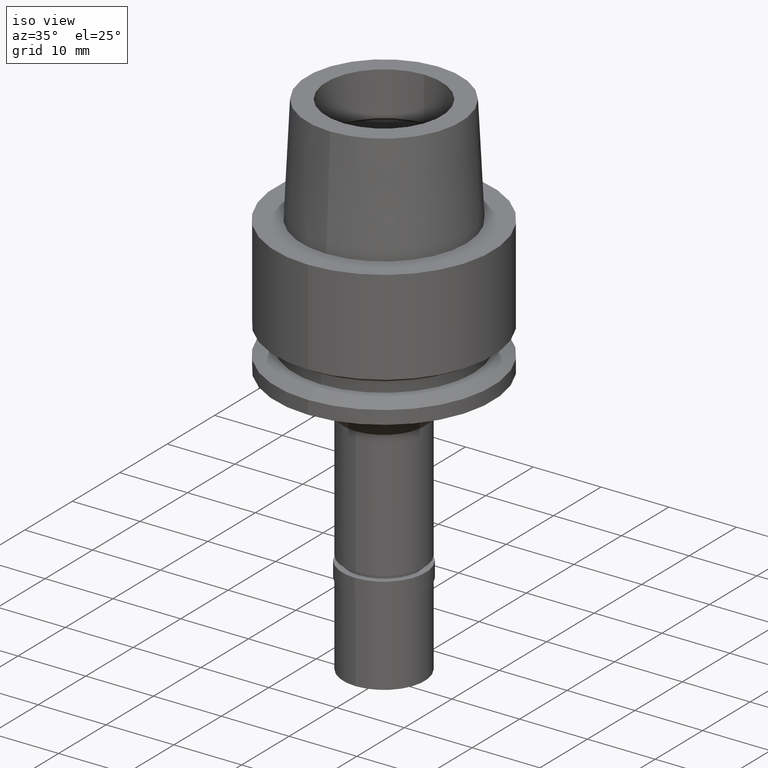
[diagram: clean part render]
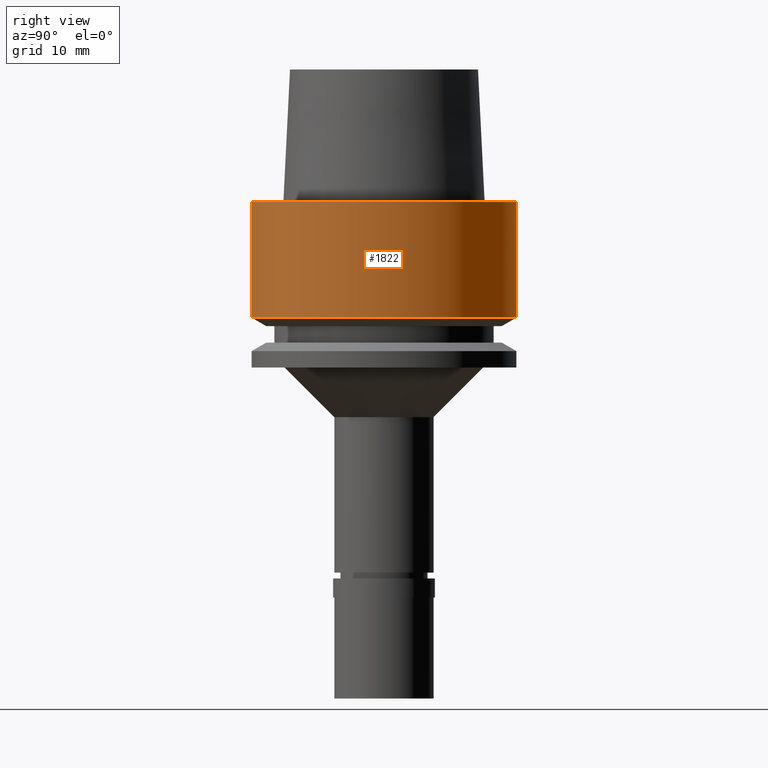
[diagram: tour spotlight — one face highlighted and labeled with its STEP entity id]
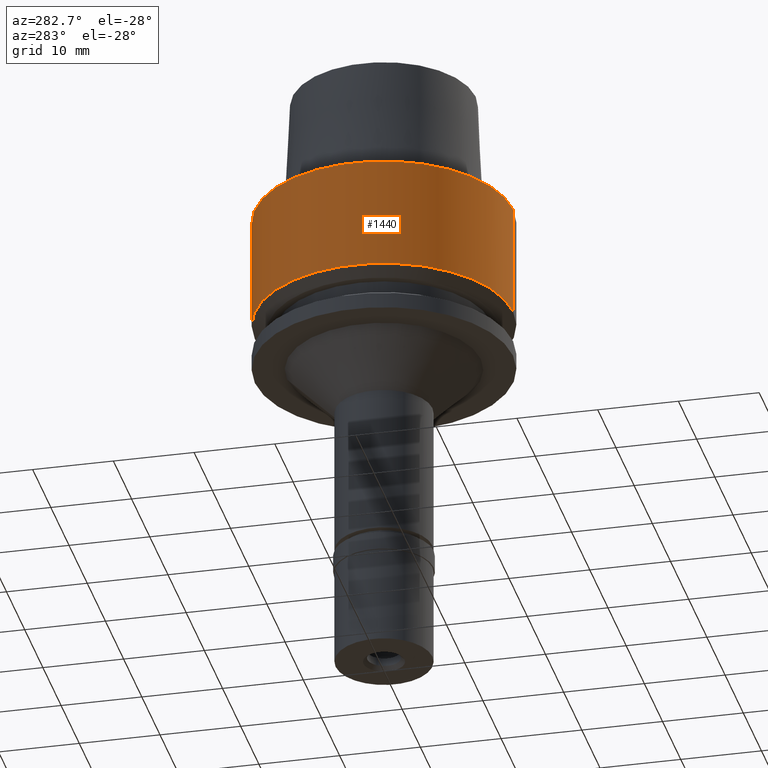
[diagram: tour spotlight — one face highlighted and labeled with its STEP entity id]
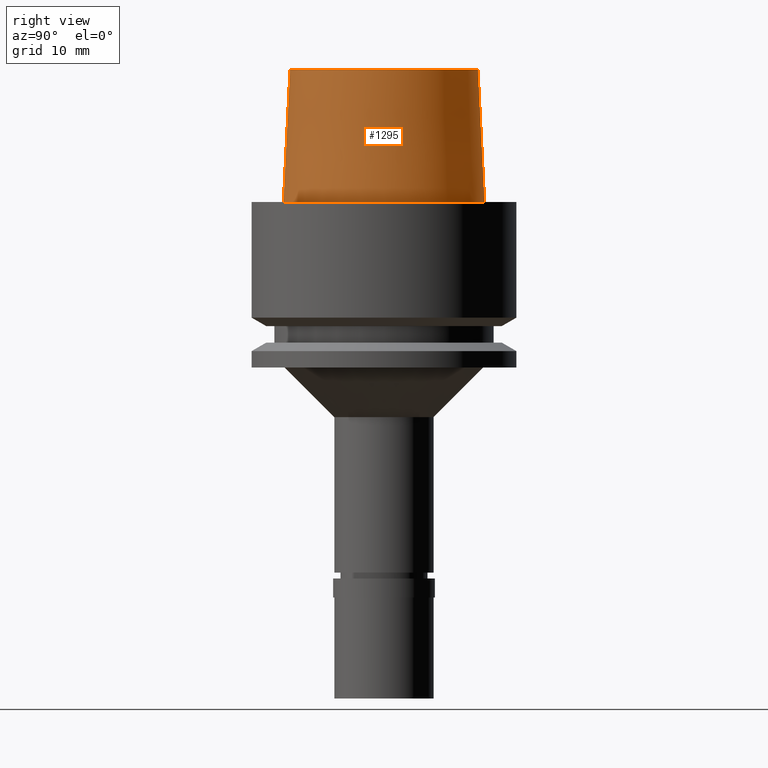
[diagram: tour spotlight — one face highlighted and labeled with its STEP entity id]
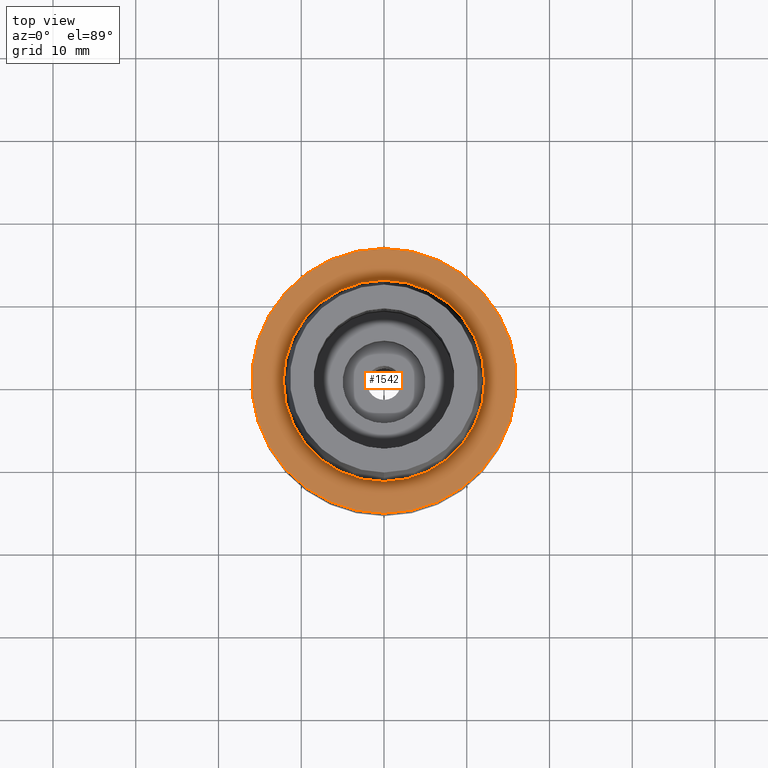
[diagram: tour spotlight — one face highlighted and labeled with its STEP entity id]
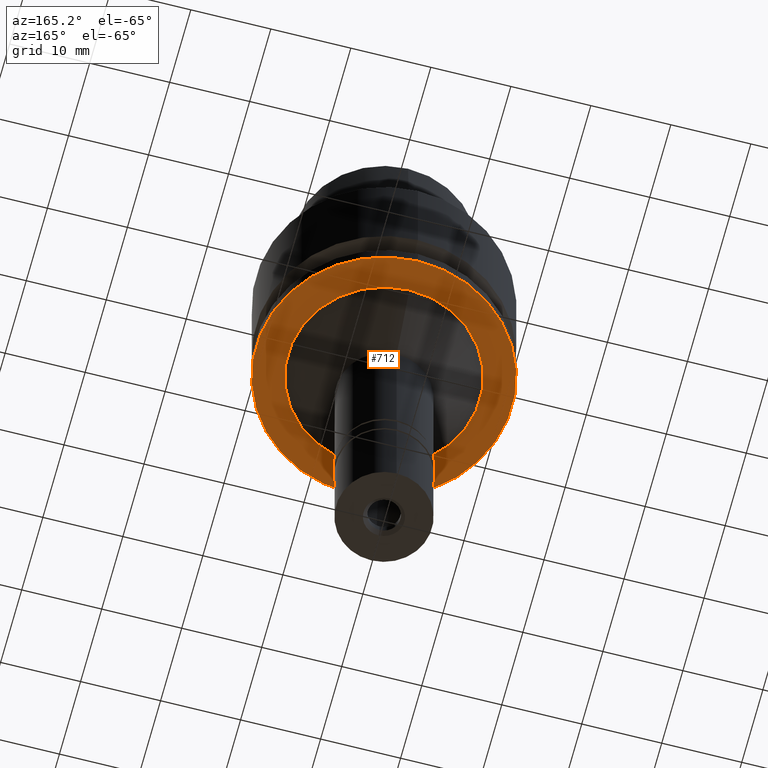
[diagram: tour spotlight — one face highlighted and labeled with its STEP entity id]
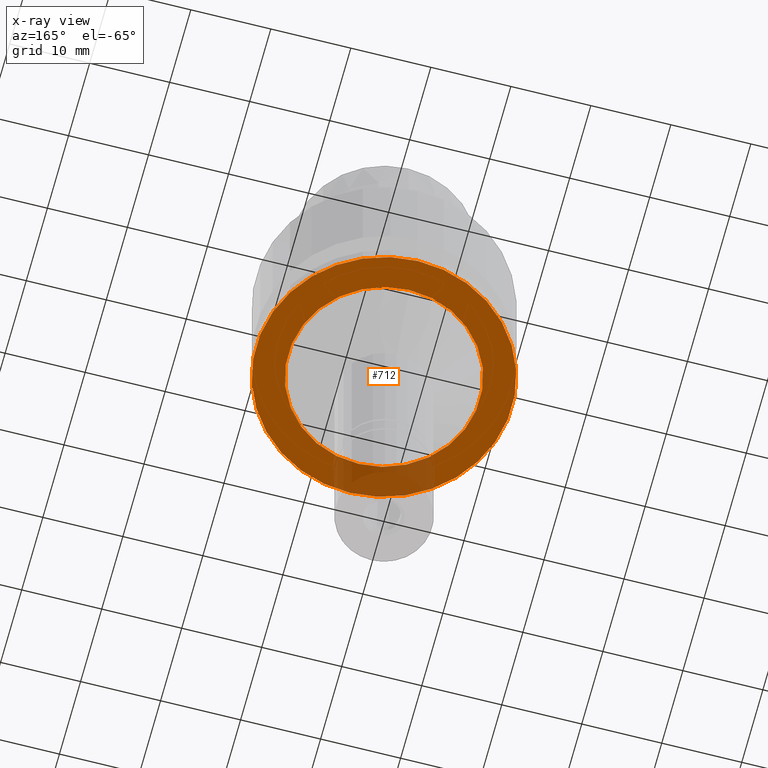
[diagram: x-ray of the same camera — body ghosted, this tour face saturated]
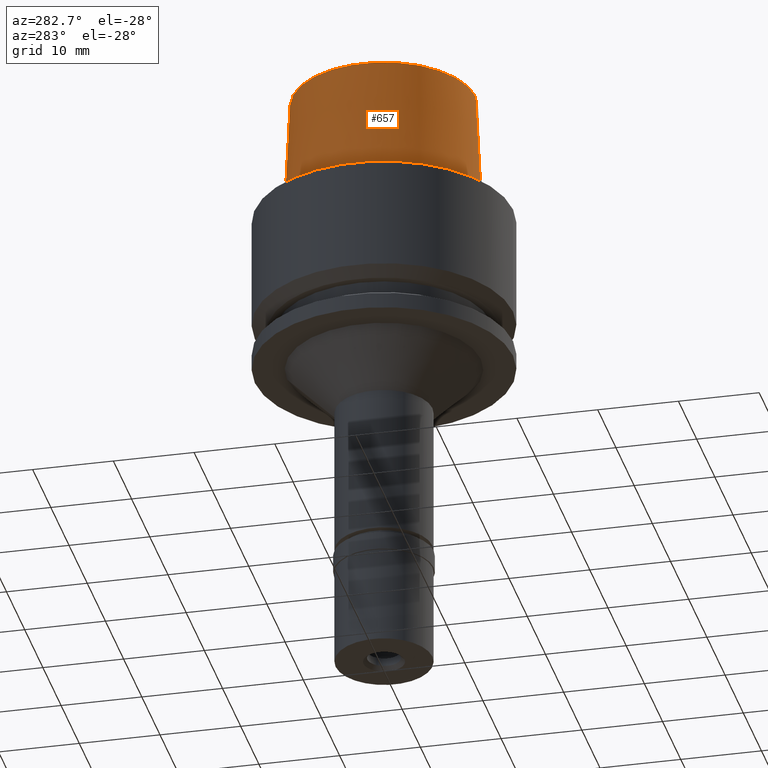
[diagram: tour spotlight — one face highlighted and labeled with its STEP entity id]
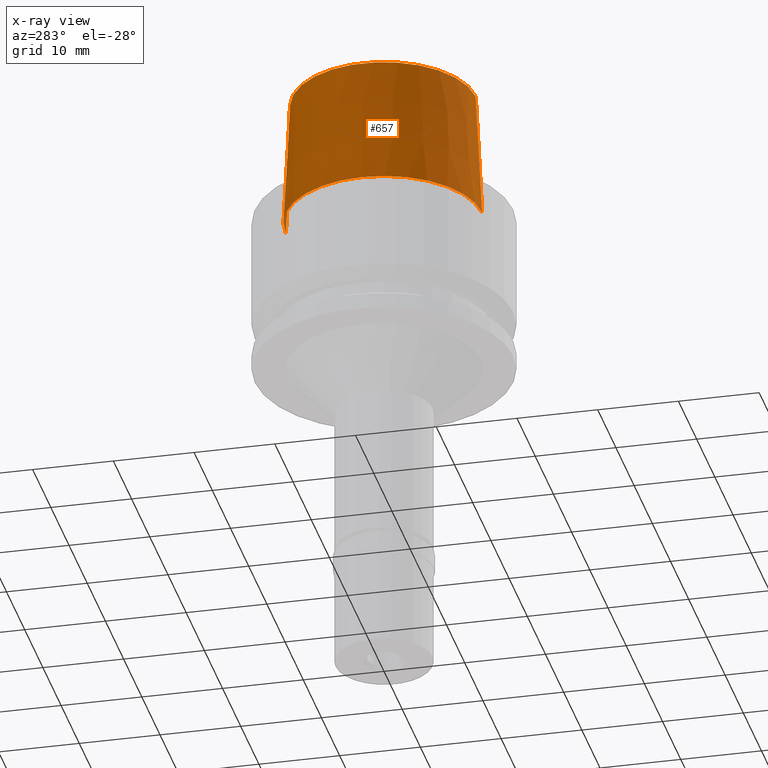
[diagram: x-ray of the same camera — body ghosted, this tour face saturated]
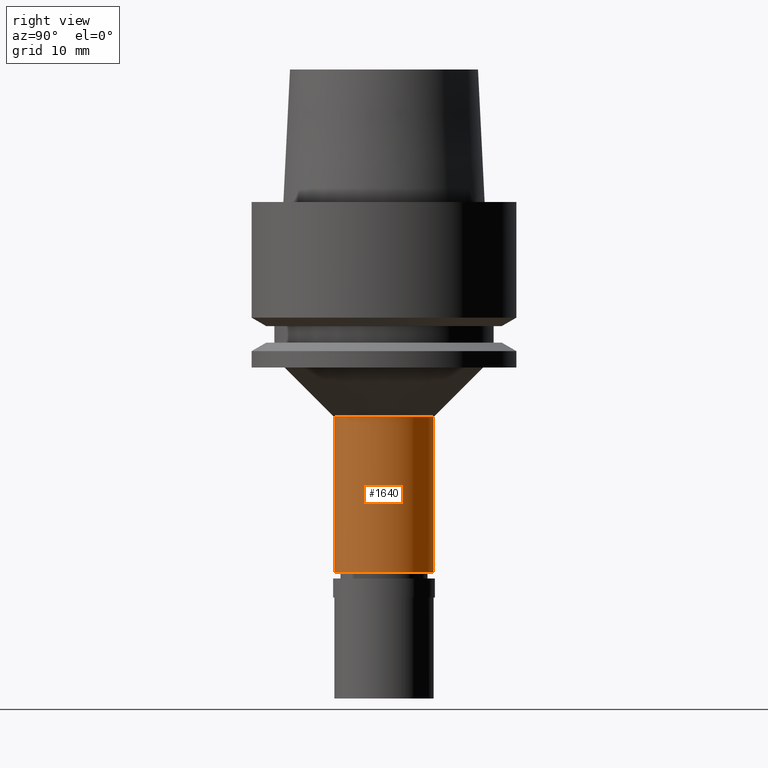
[diagram: tour spotlight — one face highlighted and labeled with its STEP entity id]
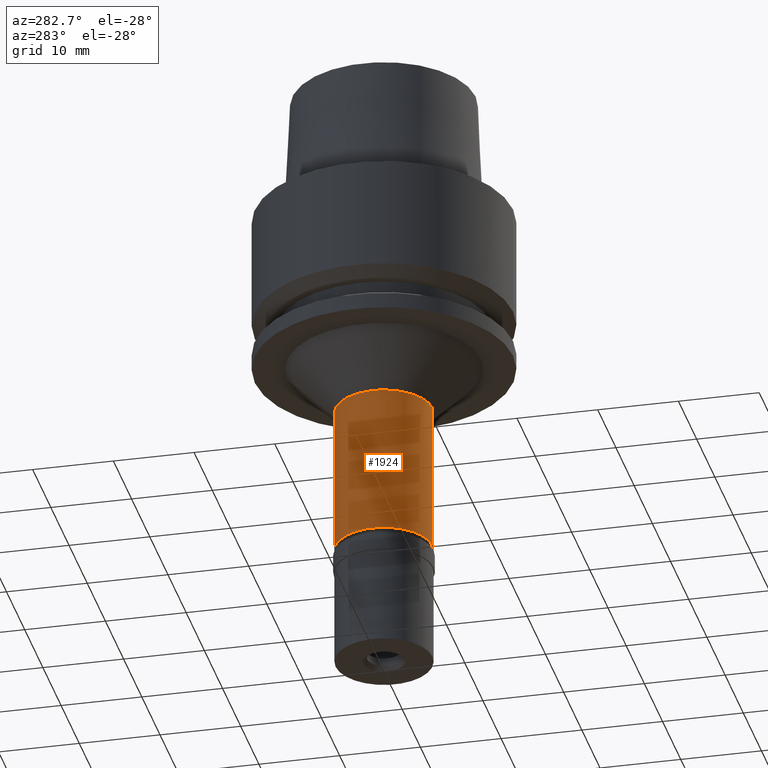
[diagram: tour spotlight — one face highlighted and labeled with its STEP entity id]
A machine part: a face-by-face anatomy tour. The part has 74 B-rep faces; the first image is the clean iso view, then the 8 largest visible faces are spotlighted one at a time (largest first), each with its STEP entity span.

Face 1 — right view, entity #1822. In plain terms, the highlighted cylindrical surface (partial cylindrical patch) has radius 16 mm, axis along (0, 0, 1).
Definition (entity closure, byte-faithful):
#21 = CARTESIAN_POINT ( 'NONE',  ( 0.0000000000000000000, 0.0000000000000000000, -59.60000000000000142 ) ) ;
#83 = EDGE_CURVE ( 'NONE', #2484, #1116, #2557, .T. ) ;
#120 = CARTESIAN_POINT ( 'NONE',  ( 0.0000000000000000000, -16.00000000000000000, -13.97927405783999966 ) ) ;
#125 = CARTESIAN_POINT ( 'NONE',  ( 0.0000000000000000000, -16.00000000000000000, -7.815970093360999808E-14 ) ) ;
#161 = VECTOR ( 'NONE', #2613, 1000.000000000000000 ) ;
#239 = DIRECTION ( 'NONE',  ( 0.0000000000000000000, 1.000000000000000000, 0.0000000000000000000 ) ) ;
#263 = FACE_OUTER_BOUND ( 'NONE', #1211, .T. ) ;
#333 = EDGE_CURVE ( 'NONE', #1255, #1116, #977, .T. ) ;
#349 = CARTESIAN_POINT ( 'NONE',  ( 0.0000000000000000000, 16.00000000000000000, -5.210646728906999149E-14 ) ) ;
#358 = EDGE_CURVE ( 'NONE', #1067, #2484, #966, .T. ) ;
#380 = ORIENTED_EDGE ( 'NONE', *, *, #358, .T. ) ;
#576 = DIRECTION ( 'NONE',  ( 0.0000000000000000000, -1.000000000000000000, 0.0000000000000000000 ) ) ;
#590 = CARTESIAN_POINT ( 'NONE',  ( 0.0000000000000000000, 0.0000000000000000000, -13.97927405783999966 ) ) ;
#599 = AXIS2_PLACEMENT_3D ( 'NONE', #590, #1838, #576 ) ;
#756 = DIRECTION ( 'NONE',  ( 0.0000000000000000000, 6.772870976582999535E-14, -1.000000000000000000 ) ) ;
#775 = CARTESIAN_POINT ( 'NONE',  ( 0.0000000000000000000, 0.0000000000000000000, -7.815970093360999808E-14 ) ) ;
#930 = CARTESIAN_POINT ( 'NONE',  ( 0.0000000000000000000, 16.00000000000000000, -13.97927405783999966 ) ) ;
#966 = LINE ( 'NONE', #1164, #2518 ) ;
#977 = LINE ( 'NONE', #349, #161 ) ;
#1013 = DIRECTION ( 'NONE',  ( 0.0000000000000000000, 1.000000000000000000, 0.0000000000000000000 ) ) ;
#1067 = VERTEX_POINT ( 'NONE', #125 ) ;
#1116 = VERTEX_POINT ( 'NONE', #930 ) ;
#1164 = CARTESIAN_POINT ( 'NONE',  ( 0.0000000000000000000, -16.00000000000000000, -5.210646728906999149E-14 ) ) ;
#1211 = EDGE_LOOP ( 'NONE', ( #1507, #380, #2096, #1720 ) ) ;
#1255 = VERTEX_POINT ( 'NONE', #1404 ) ;
#1404 = CARTESIAN_POINT ( 'NONE',  ( 0.0000000000000000000, 16.00000000000000000, -7.815970093360999808E-14 ) ) ;
#1507 = ORIENTED_EDGE ( 'NONE', *, *, #1943, .T. ) ;
#1598 = CIRCLE ( 'NONE', #2328, 16.00000000000000000 ) ;
#1720 = ORIENTED_EDGE ( 'NONE', *, *, #333, .F. ) ;
#1822 = ADVANCED_FACE ( 'NONE', ( #263 ), #1901, .T. ) ;
#1838 = DIRECTION ( 'NONE',  ( 0.0000000000000000000, 0.0000000000000000000, 1.000000000000000000 ) ) ;
#1901 = CYLINDRICAL_SURFACE ( 'NONE', #2280, 16.00000000000000000 ) ;
#1943 = EDGE_CURVE ( 'NONE', #1255, #1067, #1598, .T. ) ;
#2096 = ORIENTED_EDGE ( 'NONE', *, *, #83, .T. ) ;
#2280 = AXIS2_PLACEMENT_3D ( 'NONE', #21, #2506, #239 ) ;
#2328 = AXIS2_PLACEMENT_3D ( 'NONE', #775, #2488, #1013 ) ;
#2484 = VERTEX_POINT ( 'NONE', #120 ) ;
#2488 = DIRECTION ( 'NONE',  ( 0.0000000000000000000, 0.0000000000000000000, -1.000000000000000000 ) ) ;
#2506 = DIRECTION ( 'NONE',  ( 0.0000000000000000000, 0.0000000000000000000, 1.000000000000000000 ) ) ;
#2518 = VECTOR ( 'NONE', #756, 1000.000000000000000 ) ;
#2557 = CIRCLE ( 'NONE', #599, 16.00000000000000000 ) ;
#2613 = DIRECTION ( 'NONE',  ( 0.0000000000000000000, -6.772870976582999535E-14, -1.000000000000000000 ) ) ;

Face 2 — auxiliary view, entity #1440. In plain terms, the highlighted cylindrical surface (partial cylindrical patch) has radius 16 mm, axis along (0, 0, 1).
Definition (entity closure, byte-faithful):
#120 = CARTESIAN_POINT ( 'NONE',  ( 0.0000000000000000000, -16.00000000000000000, -13.97927405783999966 ) ) ;
#125 = CARTESIAN_POINT ( 'NONE',  ( 0.0000000000000000000, -16.00000000000000000, -7.815970093360999808E-14 ) ) ;
#161 = VECTOR ( 'NONE', #2613, 1000.000000000000000 ) ;
#314 = EDGE_CURVE ( 'NONE', #1116, #2484, #1828, .T. ) ;
#333 = EDGE_CURVE ( 'NONE', #1255, #1116, #977, .T. ) ;
#349 = CARTESIAN_POINT ( 'NONE',  ( 0.0000000000000000000, 16.00000000000000000, -5.210646728906999149E-14 ) ) ;
#358 = EDGE_CURVE ( 'NONE', #1067, #2484, #966, .T. ) ;
#420 = CYLINDRICAL_SURFACE ( 'NONE', #665, 16.00000000000000000 ) ;
#578 = DIRECTION ( 'NONE',  ( 0.0000000000000000000, 1.000000000000000000, 0.0000000000000000000 ) ) ;
#665 = AXIS2_PLACEMENT_3D ( 'NONE', #1210, #1019, #578 ) ;
#756 = DIRECTION ( 'NONE',  ( 0.0000000000000000000, 6.772870976582999535E-14, -1.000000000000000000 ) ) ;
#930 = CARTESIAN_POINT ( 'NONE',  ( 0.0000000000000000000, 16.00000000000000000, -13.97927405783999966 ) ) ;
#966 = LINE ( 'NONE', #1164, #2518 ) ;
#977 = LINE ( 'NONE', #349, #161 ) ;
#989 = DIRECTION ( 'NONE',  ( 0.0000000000000000000, 0.0000000000000000000, 1.000000000000000000 ) ) ;
#998 = CARTESIAN_POINT ( 'NONE',  ( 0.0000000000000000000, 0.0000000000000000000, -7.815970093360999808E-14 ) ) ;
#1019 = DIRECTION ( 'NONE',  ( 0.0000000000000000000, 0.0000000000000000000, 1.000000000000000000 ) ) ;
#1036 = FACE_OUTER_BOUND ( 'NONE', #1156, .T. ) ;
#1067 = VERTEX_POINT ( 'NONE', #125 ) ;
#1116 = VERTEX_POINT ( 'NONE', #930 ) ;
#1129 = ORIENTED_EDGE ( 'NONE', *, *, #333, .T. ) ;
#1156 = EDGE_LOOP ( 'NONE', ( #1645, #1944, #1455, #1129 ) ) ;
#1162 = AXIS2_PLACEMENT_3D ( 'NONE', #1814, #989, #1830 ) ;
#1164 = CARTESIAN_POINT ( 'NONE',  ( 0.0000000000000000000, -16.00000000000000000, -5.210646728906999149E-14 ) ) ;
#1194 = AXIS2_PLACEMENT_3D ( 'NONE', #998, #1878, #1480 ) ;
#1210 = CARTESIAN_POINT ( 'NONE',  ( 0.0000000000000000000, 0.0000000000000000000, -59.60000000000000142 ) ) ;
#1255 = VERTEX_POINT ( 'NONE', #1404 ) ;
#1404 = CARTESIAN_POINT ( 'NONE',  ( 0.0000000000000000000, 16.00000000000000000, -7.815970093360999808E-14 ) ) ;
#1440 = ADVANCED_FACE ( 'NONE', ( #1036 ), #420, .T. ) ;
#1455 = ORIENTED_EDGE ( 'NONE', *, *, #2522, .T. ) ;
#1480 = DIRECTION ( 'NONE',  ( 0.0000000000000000000, -1.000000000000000000, 0.0000000000000000000 ) ) ;
#1554 = CIRCLE ( 'NONE', #1194, 16.00000000000000000 ) ;
#1645 = ORIENTED_EDGE ( 'NONE', *, *, #314, .T. ) ;
#1814 = CARTESIAN_POINT ( 'NONE',  ( 0.0000000000000000000, 0.0000000000000000000, -13.97927405783999966 ) ) ;
#1828 = CIRCLE ( 'NONE', #1162, 16.00000000000000000 ) ;
#1830 = DIRECTION ( 'NONE',  ( 0.0000000000000000000, 1.000000000000000000, 0.0000000000000000000 ) ) ;
#1878 = DIRECTION ( 'NONE',  ( 0.0000000000000000000, 0.0000000000000000000, -1.000000000000000000 ) ) ;
#1944 = ORIENTED_EDGE ( 'NONE', *, *, #358, .F. ) ;
#2484 = VERTEX_POINT ( 'NONE', #120 ) ;
#2518 = VECTOR ( 'NONE', #756, 1000.000000000000000 ) ;
#2522 = EDGE_CURVE ( 'NONE', #1067, #1255, #1554, .T. ) ;
#2613 = DIRECTION ( 'NONE',  ( 0.0000000000000000000, -6.772870976582999535E-14, -1.000000000000000000 ) ) ;

Face 3 — right view, entity #1295. In plain terms, the highlighted conical surface has half-angle 2.862 deg.
Definition (entity closure, byte-faithful):
#122 = LINE ( 'NONE', #738, #997 ) ;
#123 = AXIS2_PLACEMENT_3D ( 'NONE', #764, #2030, #947 ) ;
#166 = VERTEX_POINT ( 'NONE', #2543 ) ;
#212 = DIRECTION ( 'NONE',  ( 0.0000000000000000000, 0.0000000000000000000, 1.000000000000000000 ) ) ;
#261 = CARTESIAN_POINT ( 'NONE',  ( 0.0000000000000000000, 0.0000000000000000000, 16.00000000000000000 ) ) ;
#422 = CIRCLE ( 'NONE', #1831, 12.15999970738999991 ) ;
#479 = EDGE_CURVE ( 'NONE', #643, #2351, #1572, .T. ) ;
#570 = EDGE_CURVE ( 'NONE', #2351, #166, #422, .T. ) ;
#643 = VERTEX_POINT ( 'NONE', #2298 ) ;
#738 = CARTESIAN_POINT ( 'NONE',  ( 0.0000000000000000000, 11.36000117044000035, 16.00000000000000000 ) ) ;
#764 = CARTESIAN_POINT ( 'NONE',  ( 0.0000000000000000000, 0.0000000000000000000, 8.000000000000000000 ) ) ;
#782 = DIRECTION ( 'NONE',  ( 0.0000000000000000000, 0.04993752584492938684, -0.9987523434327887362 ) ) ;
#831 = EDGE_CURVE ( 'NONE', #1829, #643, #2216, .T. ) ;
#854 = DIRECTION ( 'NONE',  ( 0.0000000000000000000, 0.0000000000000000000, -1.000000000000000000 ) ) ;
#947 = DIRECTION ( 'NONE',  ( 0.0000000000000000000, -1.000000000000000000, 0.0000000000000000000 ) ) ;
#997 = VECTOR ( 'NONE', #782, 999.9999999999998863 ) ;
#1000 = ORIENTED_EDGE ( 'NONE', *, *, #479, .T. ) ;
#1063 = EDGE_LOOP ( 'NONE', ( #1201, #1000, #1978, #1826 ) ) ;
#1074 = CARTESIAN_POINT ( 'NONE',  ( 0.0000000000000000000, 11.36000117044999946, 16.00000000000000000 ) ) ;
#1080 = AXIS2_PLACEMENT_3D ( 'NONE', #261, #854, #1938 ) ;
#1199 = EDGE_CURVE ( 'NONE', #1829, #166, #122, .T. ) ;
#1201 = ORIENTED_EDGE ( 'NONE', *, *, #831, .T. ) ;
#1295 = ADVANCED_FACE ( 'NONE', ( #2632 ), #2301, .T. ) ;
#1378 = CARTESIAN_POINT ( 'NONE',  ( 0.0000000000000000000, -12.15999970738999991, 2.078337502097999714E-13 ) ) ;
#1398 = DIRECTION ( 'NONE',  ( 0.0000000000000000000, -0.04993752584492938684, -0.9987523434327887362 ) ) ;
#1572 = LINE ( 'NONE', #1614, #1873 ) ;
#1614 = CARTESIAN_POINT ( 'NONE',  ( 0.0000000000000000000, -11.36000117044000035, 16.00000000000000000 ) ) ;
#1826 = ORIENTED_EDGE ( 'NONE', *, *, #1199, .F. ) ;
#1829 = VERTEX_POINT ( 'NONE', #1074 ) ;
#1831 = AXIS2_PLACEMENT_3D ( 'NONE', #2086, #212, #1833 ) ;
#1833 = DIRECTION ( 'NONE',  ( 0.0000000000000000000, -1.000000000000000000, 0.0000000000000000000 ) ) ;
#1873 = VECTOR ( 'NONE', #1398, 999.9999999999998863 ) ;
#1938 = DIRECTION ( 'NONE',  ( 0.0000000000000000000, 1.000000000000000000, 0.0000000000000000000 ) ) ;
#1978 = ORIENTED_EDGE ( 'NONE', *, *, #570, .T. ) ;
#2030 = DIRECTION ( 'NONE',  ( 0.0000000000000000000, 0.0000000000000000000, -1.000000000000000000 ) ) ;
#2086 = CARTESIAN_POINT ( 'NONE',  ( 0.0000000000000000000, 0.0000000000000000000, 3.126388037344000570E-13 ) ) ;
#2216 = CIRCLE ( 'NONE', #1080, 11.36000117044999946 ) ;
#2298 = CARTESIAN_POINT ( 'NONE',  ( 0.0000000000000000000, -11.36000117044999946, 16.00000000000000000 ) ) ;
#2301 = CONICAL_SURFACE ( 'NONE', #123, 11.76000043892000058, 0.04995830450907576964 ) ;
#2351 = VERTEX_POINT ( 'NONE', #1378 ) ;
#2543 = CARTESIAN_POINT ( 'NONE',  ( 0.0000000000000000000, 12.15999970738999991, 2.078337502097999714E-13 ) ) ;
#2632 = FACE_OUTER_BOUND ( 'NONE', #1063, .T. ) ;

Face 4 — top view, entity #1542. In plain terms, the highlighted planar face has unit normal (0, 0, 1).
Definition (entity closure, byte-faithful):
#88 = EDGE_LOOP ( 'NONE', ( #1442, #451 ) ) ;
#125 = CARTESIAN_POINT ( 'NONE',  ( 0.0000000000000000000, -16.00000000000000000, -7.815970093360999808E-14 ) ) ;
#159 = DIRECTION ( 'NONE',  ( 1.000000000000000000, 0.0000000000000000000, 0.0000000000000000000 ) ) ;
#166 = VERTEX_POINT ( 'NONE', #2543 ) ;
#212 = DIRECTION ( 'NONE',  ( 0.0000000000000000000, 0.0000000000000000000, 1.000000000000000000 ) ) ;
#394 = CARTESIAN_POINT ( 'NONE',  ( 0.0000000000000000000, 0.0000000000000000000, 3.126388037344000570E-13 ) ) ;
#422 = CIRCLE ( 'NONE', #1831, 12.15999970738999991 ) ;
#451 = ORIENTED_EDGE ( 'NONE', *, *, #2522, .F. ) ;
#487 = ORIENTED_EDGE ( 'NONE', *, *, #570, .F. ) ;
#570 = EDGE_CURVE ( 'NONE', #2351, #166, #422, .T. ) ;
#710 = AXIS2_PLACEMENT_3D ( 'NONE', #1190, #2475, #159 ) ;
#775 = CARTESIAN_POINT ( 'NONE',  ( 0.0000000000000000000, 0.0000000000000000000, -7.815970093360999808E-14 ) ) ;
#998 = CARTESIAN_POINT ( 'NONE',  ( 0.0000000000000000000, 0.0000000000000000000, -7.815970093360999808E-14 ) ) ;
#1013 = DIRECTION ( 'NONE',  ( 0.0000000000000000000, 1.000000000000000000, 0.0000000000000000000 ) ) ;
#1067 = VERTEX_POINT ( 'NONE', #125 ) ;
#1190 = CARTESIAN_POINT ( 'NONE',  ( 0.0000000000000000000, 0.0000000000000000000, 0.0000000000000000000 ) ) ;
#1194 = AXIS2_PLACEMENT_3D ( 'NONE', #998, #1878, #1480 ) ;
#1224 = DIRECTION ( 'NONE',  ( 0.0000000000000000000, 1.000000000000000000, 0.0000000000000000000 ) ) ;
#1255 = VERTEX_POINT ( 'NONE', #1404 ) ;
#1378 = CARTESIAN_POINT ( 'NONE',  ( 0.0000000000000000000, -12.15999970738999991, 2.078337502097999714E-13 ) ) ;
#1404 = CARTESIAN_POINT ( 'NONE',  ( 0.0000000000000000000, 16.00000000000000000, -7.815970093360999808E-14 ) ) ;
#1442 = ORIENTED_EDGE ( 'NONE', *, *, #1943, .F. ) ;
#1480 = DIRECTION ( 'NONE',  ( 0.0000000000000000000, -1.000000000000000000, 0.0000000000000000000 ) ) ;
#1542 = ADVANCED_FACE ( 'NONE', ( #1859, #2492 ), #2677, .T. ) ;
#1554 = CIRCLE ( 'NONE', #1194, 16.00000000000000000 ) ;
#1598 = CIRCLE ( 'NONE', #2328, 16.00000000000000000 ) ;
#1786 = EDGE_LOOP ( 'NONE', ( #2432, #487 ) ) ;
#1831 = AXIS2_PLACEMENT_3D ( 'NONE', #2086, #212, #1833 ) ;
#1833 = DIRECTION ( 'NONE',  ( 0.0000000000000000000, -1.000000000000000000, 0.0000000000000000000 ) ) ;
#1859 = FACE_OUTER_BOUND ( 'NONE', #88, .T. ) ;
#1878 = DIRECTION ( 'NONE',  ( 0.0000000000000000000, 0.0000000000000000000, -1.000000000000000000 ) ) ;
#1904 = CIRCLE ( 'NONE', #2546, 12.15999970738999991 ) ;
#1943 = EDGE_CURVE ( 'NONE', #1255, #1067, #1598, .T. ) ;
#2049 = DIRECTION ( 'NONE',  ( 0.0000000000000000000, 0.0000000000000000000, 1.000000000000000000 ) ) ;
#2086 = CARTESIAN_POINT ( 'NONE',  ( 0.0000000000000000000, 0.0000000000000000000, 3.126388037344000570E-13 ) ) ;
#2088 = EDGE_CURVE ( 'NONE', #166, #2351, #1904, .T. ) ;
#2328 = AXIS2_PLACEMENT_3D ( 'NONE', #775, #2488, #1013 ) ;
#2351 = VERTEX_POINT ( 'NONE', #1378 ) ;
#2432 = ORIENTED_EDGE ( 'NONE', *, *, #2088, .F. ) ;
#2475 = DIRECTION ( 'NONE',  ( 0.0000000000000000000, 0.0000000000000000000, 1.000000000000000000 ) ) ;
#2488 = DIRECTION ( 'NONE',  ( 0.0000000000000000000, 0.0000000000000000000, -1.000000000000000000 ) ) ;
#2492 = FACE_BOUND ( 'NONE', #1786, .T. ) ;
#2522 = EDGE_CURVE ( 'NONE', #1067, #1255, #1554, .T. ) ;
#2543 = CARTESIAN_POINT ( 'NONE',  ( 0.0000000000000000000, 12.15999970738999991, 2.078337502097999714E-13 ) ) ;
#2546 = AXIS2_PLACEMENT_3D ( 'NONE', #394, #2049, #1224 ) ;
#2677 = PLANE ( 'NONE',  #710 ) ;

Face 5 — auxiliary view, entity #712. An x-ray twin of the same camera follows (body ghosted, this face saturated) — the face is partly hidden behind the body. In plain terms, the highlighted planar face has unit normal (0, 0, 1).
Definition (entity closure, byte-faithful):
#15 = CARTESIAN_POINT ( 'NONE',  ( 0.0000000000000000000, 0.0000000000000000000, -20.00000000000000000 ) ) ;
#47 = PLANE ( 'NONE',  #2299 ) ;
#158 = EDGE_CURVE ( 'NONE', #792, #923, #1782, .T. ) ;
#235 = ORIENTED_EDGE ( 'NONE', *, *, #1689, .F. ) ;
#237 = FACE_BOUND ( 'NONE', #2352, .T. ) ;
#417 = CARTESIAN_POINT ( 'NONE',  ( 0.0000000000000000000, 0.0000000000000000000, -20.00000000000000000 ) ) ;
#450 = FACE_OUTER_BOUND ( 'NONE', #1041, .T. ) ;
#470 = CIRCLE ( 'NONE', #1921, 12.00000000000000000 ) ;
#491 = DIRECTION ( 'NONE',  ( 0.0000000000000000000, 1.000000000000000000, 0.0000000000000000000 ) ) ;
#712 = ADVANCED_FACE ( 'NONE', ( #450, #237 ), #47, .F. ) ;
#734 = ORIENTED_EDGE ( 'NONE', *, *, #746, .F. ) ;
#746 = EDGE_CURVE ( 'NONE', #2687, #1810, #2428, .T. ) ;
#792 = VERTEX_POINT ( 'NONE', #2346 ) ;
#880 = DIRECTION ( 'NONE',  ( 0.0000000000000000000, 0.0000000000000000000, 1.000000000000000000 ) ) ;
#923 = VERTEX_POINT ( 'NONE', #1973 ) ;
#1016 = DIRECTION ( 'NONE',  ( 0.0000000000000000000, -1.000000000000000000, 0.0000000000000000000 ) ) ;
#1041 = EDGE_LOOP ( 'NONE', ( #1213, #235 ) ) ;
#1071 = CARTESIAN_POINT ( 'NONE',  ( 0.0000000000000000000, 0.0000000000000000000, -20.00000000000000000 ) ) ;
#1075 = DIRECTION ( 'NONE',  ( 0.0000000000000000000, 0.0000000000000000000, 1.000000000000000000 ) ) ;
#1078 = AXIS2_PLACEMENT_3D ( 'NONE', #417, #1075, #1465 ) ;
#1113 = EDGE_CURVE ( 'NONE', #1810, #2687, #470, .T. ) ;
#1213 = ORIENTED_EDGE ( 'NONE', *, *, #158, .F. ) ;
#1230 = AXIS2_PLACEMENT_3D ( 'NONE', #2245, #1616, #1016 ) ;
#1285 = CARTESIAN_POINT ( 'NONE',  ( 0.0000000000000000000, 0.0000000000000000000, -20.00000000000000000 ) ) ;
#1289 = CARTESIAN_POINT ( 'NONE',  ( 0.0000000000000000000, 12.00000000000000000, -20.00000000000000000 ) ) ;
#1297 = AXIS2_PLACEMENT_3D ( 'NONE', #1285, #1313, #2520 ) ;
#1313 = DIRECTION ( 'NONE',  ( 0.0000000000000000000, 0.0000000000000000000, -1.000000000000000000 ) ) ;
#1465 = DIRECTION ( 'NONE',  ( 0.0000000000000000000, 1.000000000000000000, 0.0000000000000000000 ) ) ;
#1477 = DIRECTION ( 'NONE',  ( 0.0000000000000000000, 0.0000000000000000000, -1.000000000000000000 ) ) ;
#1616 = DIRECTION ( 'NONE',  ( 0.0000000000000000000, 0.0000000000000000000, 1.000000000000000000 ) ) ;
#1689 = EDGE_CURVE ( 'NONE', #923, #792, #1857, .T. ) ;
#1782 = CIRCLE ( 'NONE', #1078, 16.00000000000000000 ) ;
#1810 = VERTEX_POINT ( 'NONE', #1289 ) ;
#1857 = CIRCLE ( 'NONE', #1230, 16.00000000000000000 ) ;
#1921 = AXIS2_PLACEMENT_3D ( 'NONE', #15, #1477, #491 ) ;
#1973 = CARTESIAN_POINT ( 'NONE',  ( 0.0000000000000000000, -16.00000000000000000, -20.00000000000000000 ) ) ;
#2074 = CARTESIAN_POINT ( 'NONE',  ( 0.0000000000000000000, -12.00000000000000000, -20.00000000000000000 ) ) ;
#2245 = CARTESIAN_POINT ( 'NONE',  ( 0.0000000000000000000, 0.0000000000000000000, -20.00000000000000000 ) ) ;
#2299 = AXIS2_PLACEMENT_3D ( 'NONE', #1071, #880, #2573 ) ;
#2346 = CARTESIAN_POINT ( 'NONE',  ( 0.0000000000000000000, 16.00000000000000000, -20.00000000000000000 ) ) ;
#2352 = EDGE_LOOP ( 'NONE', ( #2499, #734 ) ) ;
#2428 = CIRCLE ( 'NONE', #1297, 12.00000000000000000 ) ;
#2499 = ORIENTED_EDGE ( 'NONE', *, *, #1113, .F. ) ;
#2520 = DIRECTION ( 'NONE',  ( 0.0000000000000000000, -1.000000000000000000, 0.0000000000000000000 ) ) ;
#2573 = DIRECTION ( 'NONE',  ( 1.000000000000000000, 0.0000000000000000000, 0.0000000000000000000 ) ) ;
#2687 = VERTEX_POINT ( 'NONE', #2074 ) ;

Face 6 — auxiliary view, entity #657. An x-ray twin of the same camera follows (body ghosted, this face saturated) — the face is partly hidden behind the body. In plain terms, the highlighted conical surface has half-angle 2.862 deg.
Definition (entity closure, byte-faithful):
#99 = CARTESIAN_POINT ( 'NONE',  ( 0.0000000000000000000, 0.0000000000000000000, 16.00000000000000000 ) ) ;
#122 = LINE ( 'NONE', #738, #997 ) ;
#166 = VERTEX_POINT ( 'NONE', #2543 ) ;
#194 = DIRECTION ( 'NONE',  ( 0.0000000000000000000, 0.0000000000000000000, -1.000000000000000000 ) ) ;
#394 = CARTESIAN_POINT ( 'NONE',  ( 0.0000000000000000000, 0.0000000000000000000, 3.126388037344000570E-13 ) ) ;
#413 = EDGE_CURVE ( 'NONE', #643, #1829, #1917, .T. ) ;
#479 = EDGE_CURVE ( 'NONE', #643, #2351, #1572, .T. ) ;
#573 = FACE_OUTER_BOUND ( 'NONE', #1284, .T. ) ;
#643 = VERTEX_POINT ( 'NONE', #2298 ) ;
#657 = ADVANCED_FACE ( 'NONE', ( #573 ), #1655, .T. ) ;
#738 = CARTESIAN_POINT ( 'NONE',  ( 0.0000000000000000000, 11.36000117044000035, 16.00000000000000000 ) ) ;
#782 = DIRECTION ( 'NONE',  ( 0.0000000000000000000, 0.04993752584492938684, -0.9987523434327887362 ) ) ;
#795 = DIRECTION ( 'NONE',  ( 0.0000000000000000000, -1.000000000000000000, 0.0000000000000000000 ) ) ;
#997 = VECTOR ( 'NONE', #782, 999.9999999999998863 ) ;
#1074 = CARTESIAN_POINT ( 'NONE',  ( 0.0000000000000000000, 11.36000117044999946, 16.00000000000000000 ) ) ;
#1169 = ORIENTED_EDGE ( 'NONE', *, *, #2088, .T. ) ;
#1199 = EDGE_CURVE ( 'NONE', #1829, #166, #122, .T. ) ;
#1224 = DIRECTION ( 'NONE',  ( 0.0000000000000000000, 1.000000000000000000, 0.0000000000000000000 ) ) ;
#1284 = EDGE_LOOP ( 'NONE', ( #1169, #1842, #2603, #1663 ) ) ;
#1378 = CARTESIAN_POINT ( 'NONE',  ( 0.0000000000000000000, -12.15999970738999991, 2.078337502097999714E-13 ) ) ;
#1398 = DIRECTION ( 'NONE',  ( 0.0000000000000000000, -0.04993752584492938684, -0.9987523434327887362 ) ) ;
#1479 = CARTESIAN_POINT ( 'NONE',  ( 0.0000000000000000000, 0.0000000000000000000, 8.000000000000000000 ) ) ;
#1572 = LINE ( 'NONE', #1614, #1873 ) ;
#1614 = CARTESIAN_POINT ( 'NONE',  ( 0.0000000000000000000, -11.36000117044000035, 16.00000000000000000 ) ) ;
#1655 = CONICAL_SURFACE ( 'NONE', #2430, 11.76000043892000058, 0.04995830450907576964 ) ;
#1663 = ORIENTED_EDGE ( 'NONE', *, *, #1199, .T. ) ;
#1829 = VERTEX_POINT ( 'NONE', #1074 ) ;
#1842 = ORIENTED_EDGE ( 'NONE', *, *, #479, .F. ) ;
#1873 = VECTOR ( 'NONE', #1398, 999.9999999999998863 ) ;
#1904 = CIRCLE ( 'NONE', #2546, 12.15999970738999991 ) ;
#1917 = CIRCLE ( 'NONE', #2685, 11.36000117044999946 ) ;
#2026 = DIRECTION ( 'NONE',  ( 0.0000000000000000000, -1.000000000000000000, 0.0000000000000000000 ) ) ;
#2049 = DIRECTION ( 'NONE',  ( 0.0000000000000000000, 0.0000000000000000000, 1.000000000000000000 ) ) ;
#2088 = EDGE_CURVE ( 'NONE', #166, #2351, #1904, .T. ) ;
#2298 = CARTESIAN_POINT ( 'NONE',  ( 0.0000000000000000000, -11.36000117044999946, 16.00000000000000000 ) ) ;
#2351 = VERTEX_POINT ( 'NONE', #1378 ) ;
#2405 = DIRECTION ( 'NONE',  ( 0.0000000000000000000, 0.0000000000000000000, -1.000000000000000000 ) ) ;
#2430 = AXIS2_PLACEMENT_3D ( 'NONE', #1479, #194, #795 ) ;
#2543 = CARTESIAN_POINT ( 'NONE',  ( 0.0000000000000000000, 12.15999970738999991, 2.078337502097999714E-13 ) ) ;
#2546 = AXIS2_PLACEMENT_3D ( 'NONE', #394, #2049, #1224 ) ;
#2603 = ORIENTED_EDGE ( 'NONE', *, *, #413, .T. ) ;
#2685 = AXIS2_PLACEMENT_3D ( 'NONE', #99, #2405, #2026 ) ;

Face 7 — right view, entity #1640. In plain terms, the highlighted cylindrical surface (partial cylindrical patch) has radius 6 mm, axis along (0, 0, 1).
Definition (entity closure, byte-faithful):
#171 = FACE_OUTER_BOUND ( 'NONE', #2610, .T. ) ;
#185 = VERTEX_POINT ( 'NONE', #873 ) ;
#217 = DIRECTION ( 'NONE',  ( 0.0000000000000000000, 1.000000000000000000, 0.0000000000000000000 ) ) ;
#371 = DIRECTION ( 'NONE',  ( 0.0000000000000000000, 0.0000000000000000000, -1.000000000000000000 ) ) ;
#427 = CARTESIAN_POINT ( 'NONE',  ( 0.0000000000000000000, 0.0000000000000000000, -26.00000000000000000 ) ) ;
#432 = EDGE_CURVE ( 'NONE', #1972, #185, #2185, .T. ) ;
#493 = DIRECTION ( 'NONE',  ( 0.0000000000000000000, 0.0000000000000000000, 1.000000000000000000 ) ) ;
#535 = ORIENTED_EDGE ( 'NONE', *, *, #659, .T. ) ;
#575 = DIRECTION ( 'NONE',  ( 0.0000000000000000000, 0.0000000000000000000, 1.000000000000000000 ) ) ;
#659 = EDGE_CURVE ( 'NONE', #1972, #2365, #2383, .T. ) ;
#739 = ORIENTED_EDGE ( 'NONE', *, *, #432, .F. ) ;
#781 = VECTOR ( 'NONE', #2438, 1000.000000000000000 ) ;
#873 = CARTESIAN_POINT ( 'NONE',  ( 0.0000000000000000000, 6.000000000000000000, -44.79999999999999716 ) ) ;
#984 = CARTESIAN_POINT ( 'NONE',  ( 0.0000000000000000000, -6.000000000000000000, -26.00000000000000000 ) ) ;
#1022 = AXIS2_PLACEMENT_3D ( 'NONE', #1043, #493, #1669 ) ;
#1043 = CARTESIAN_POINT ( 'NONE',  ( 0.0000000000000000000, 0.0000000000000000000, -44.79999999999999716 ) ) ;
#1064 = AXIS2_PLACEMENT_3D ( 'NONE', #1641, #575, #217 ) ;
#1186 = CARTESIAN_POINT ( 'NONE',  ( 0.0000000000000000000, 6.000000000000000000, -26.00000000000000000 ) ) ;
#1196 = LINE ( 'NONE', #984, #781 ) ;
#1207 = AXIS2_PLACEMENT_3D ( 'NONE', #427, #371, #1259 ) ;
#1259 = DIRECTION ( 'NONE',  ( 0.0000000000000000000, 1.000000000000000000, 0.0000000000000000000 ) ) ;
#1312 = EDGE_CURVE ( 'NONE', #2365, #2189, #1196, .T. ) ;
#1331 = CIRCLE ( 'NONE', #1022, 6.000000000000000000 ) ;
#1426 = VECTOR ( 'NONE', #1817, 1000.000000000000000 ) ;
#1628 = CYLINDRICAL_SURFACE ( 'NONE', #1064, 6.000000000000000000 ) ;
#1640 = ADVANCED_FACE ( 'NONE', ( #171 ), #1628, .T. ) ;
#1641 = CARTESIAN_POINT ( 'NONE',  ( 0.0000000000000000000, 0.0000000000000000000, -59.60000000000000142 ) ) ;
#1669 = DIRECTION ( 'NONE',  ( 0.0000000000000000000, -1.000000000000000000, 0.0000000000000000000 ) ) ;
#1712 = ORIENTED_EDGE ( 'NONE', *, *, #2244, .T. ) ;
#1817 = DIRECTION ( 'NONE',  ( 0.0000000000000000000, 0.0000000000000000000, -1.000000000000000000 ) ) ;
#1853 = CARTESIAN_POINT ( 'NONE',  ( 0.0000000000000000000, 6.000000000000000000, -26.00000000000000000 ) ) ;
#1972 = VERTEX_POINT ( 'NONE', #1853 ) ;
#2059 = ORIENTED_EDGE ( 'NONE', *, *, #1312, .T. ) ;
#2185 = LINE ( 'NONE', #1186, #1426 ) ;
#2189 = VERTEX_POINT ( 'NONE', #2565 ) ;
#2198 = CARTESIAN_POINT ( 'NONE',  ( 0.0000000000000000000, -6.000000000000000000, -26.00000000000000000 ) ) ;
#2244 = EDGE_CURVE ( 'NONE', #2189, #185, #1331, .T. ) ;
#2365 = VERTEX_POINT ( 'NONE', #2198 ) ;
#2383 = CIRCLE ( 'NONE', #1207, 6.000000000000000000 ) ;
#2438 = DIRECTION ( 'NONE',  ( 0.0000000000000000000, 0.0000000000000000000, -1.000000000000000000 ) ) ;
#2565 = CARTESIAN_POINT ( 'NONE',  ( 0.0000000000000000000, -6.000000000000000000, -44.79999999999999716 ) ) ;
#2610 = EDGE_LOOP ( 'NONE', ( #535, #2059, #1712, #739 ) ) ;

Face 8 — auxiliary view, entity #1924. In plain terms, the highlighted cylindrical surface (partial cylindrical patch) has radius 6 mm, axis along (0, 0, 1).
Definition (entity closure, byte-faithful):
#86 = ORIENTED_EDGE ( 'NONE', *, *, #2580, .T. ) ;
#107 = DIRECTION ( 'NONE',  ( 0.0000000000000000000, -1.000000000000000000, 0.0000000000000000000 ) ) ;
#185 = VERTEX_POINT ( 'NONE', #873 ) ;
#432 = EDGE_CURVE ( 'NONE', #1972, #185, #2185, .T. ) ;
#513 = CARTESIAN_POINT ( 'NONE',  ( 0.0000000000000000000, 0.0000000000000000000, -59.60000000000000142 ) ) ;
#537 = DIRECTION ( 'NONE',  ( 0.0000000000000000000, 1.000000000000000000, 0.0000000000000000000 ) ) ;
#598 = CIRCLE ( 'NONE', #820, 6.000000000000000000 ) ;
#702 = ORIENTED_EDGE ( 'NONE', *, *, #432, .T. ) ;
#713 = DIRECTION ( 'NONE',  ( 0.0000000000000000000, 0.0000000000000000000, 1.000000000000000000 ) ) ;
#718 = AXIS2_PLACEMENT_3D ( 'NONE', #1885, #1121, #2572 ) ;
#781 = VECTOR ( 'NONE', #2438, 1000.000000000000000 ) ;
#805 = CIRCLE ( 'NONE', #718, 6.000000000000000000 ) ;
#818 = ORIENTED_EDGE ( 'NONE', *, *, #1312, .F. ) ;
#820 = AXIS2_PLACEMENT_3D ( 'NONE', #1142, #1991, #107 ) ;
#873 = CARTESIAN_POINT ( 'NONE',  ( 0.0000000000000000000, 6.000000000000000000, -44.79999999999999716 ) ) ;
#984 = CARTESIAN_POINT ( 'NONE',  ( 0.0000000000000000000, -6.000000000000000000, -26.00000000000000000 ) ) ;
#1121 = DIRECTION ( 'NONE',  ( 0.0000000000000000000, 0.0000000000000000000, 1.000000000000000000 ) ) ;
#1142 = CARTESIAN_POINT ( 'NONE',  ( 0.0000000000000000000, 0.0000000000000000000, -26.00000000000000000 ) ) ;
#1186 = CARTESIAN_POINT ( 'NONE',  ( 0.0000000000000000000, 6.000000000000000000, -26.00000000000000000 ) ) ;
#1196 = LINE ( 'NONE', #984, #781 ) ;
#1312 = EDGE_CURVE ( 'NONE', #2365, #2189, #1196, .T. ) ;
#1332 = EDGE_CURVE ( 'NONE', #2365, #1972, #598, .T. ) ;
#1361 = FACE_OUTER_BOUND ( 'NONE', #1523, .T. ) ;
#1426 = VECTOR ( 'NONE', #1817, 1000.000000000000000 ) ;
#1523 = EDGE_LOOP ( 'NONE', ( #86, #818, #2551, #702 ) ) ;
#1815 = AXIS2_PLACEMENT_3D ( 'NONE', #513, #713, #537 ) ;
#1817 = DIRECTION ( 'NONE',  ( 0.0000000000000000000, 0.0000000000000000000, -1.000000000000000000 ) ) ;
#1853 = CARTESIAN_POINT ( 'NONE',  ( 0.0000000000000000000, 6.000000000000000000, -26.00000000000000000 ) ) ;
#1885 = CARTESIAN_POINT ( 'NONE',  ( 0.0000000000000000000, 0.0000000000000000000, -44.79999999999999716 ) ) ;
#1924 = ADVANCED_FACE ( 'NONE', ( #1361 ), #1975, .T. ) ;
#1972 = VERTEX_POINT ( 'NONE', #1853 ) ;
#1975 = CYLINDRICAL_SURFACE ( 'NONE', #1815, 6.000000000000000000 ) ;
#1991 = DIRECTION ( 'NONE',  ( 0.0000000000000000000, 0.0000000000000000000, -1.000000000000000000 ) ) ;
#2185 = LINE ( 'NONE', #1186, #1426 ) ;
#2189 = VERTEX_POINT ( 'NONE', #2565 ) ;
#2198 = CARTESIAN_POINT ( 'NONE',  ( 0.0000000000000000000, -6.000000000000000000, -26.00000000000000000 ) ) ;
#2365 = VERTEX_POINT ( 'NONE', #2198 ) ;
#2438 = DIRECTION ( 'NONE',  ( 0.0000000000000000000, 0.0000000000000000000, -1.000000000000000000 ) ) ;
#2551 = ORIENTED_EDGE ( 'NONE', *, *, #1332, .T. ) ;
#2565 = CARTESIAN_POINT ( 'NONE',  ( 0.0000000000000000000, -6.000000000000000000, -44.79999999999999716 ) ) ;
#2572 = DIRECTION ( 'NONE',  ( 0.0000000000000000000, 1.000000000000000000, 0.0000000000000000000 ) ) ;
#2580 = EDGE_CURVE ( 'NONE', #185, #2189, #805, .T. ) ;